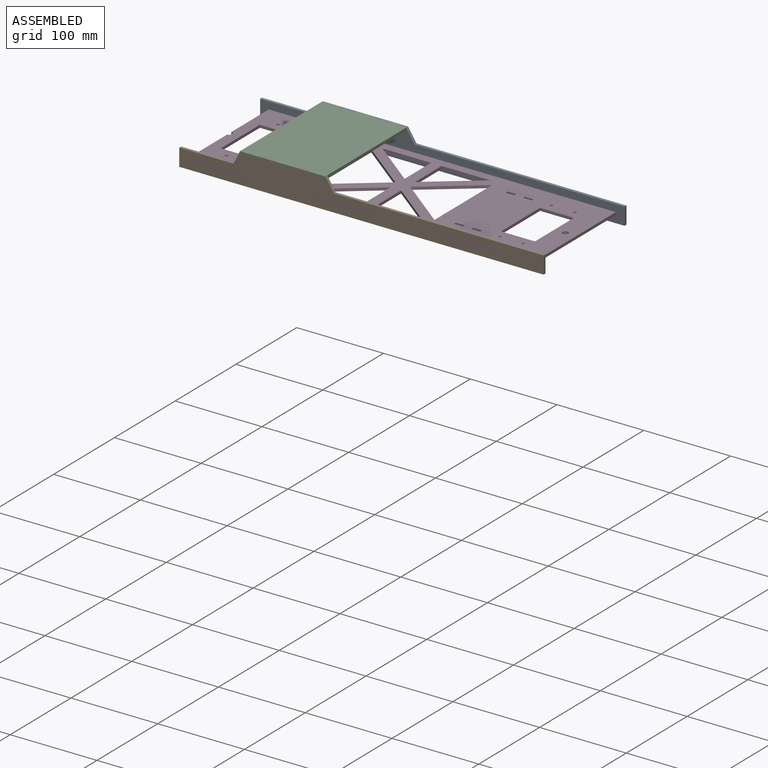
[diagram: assembled view]
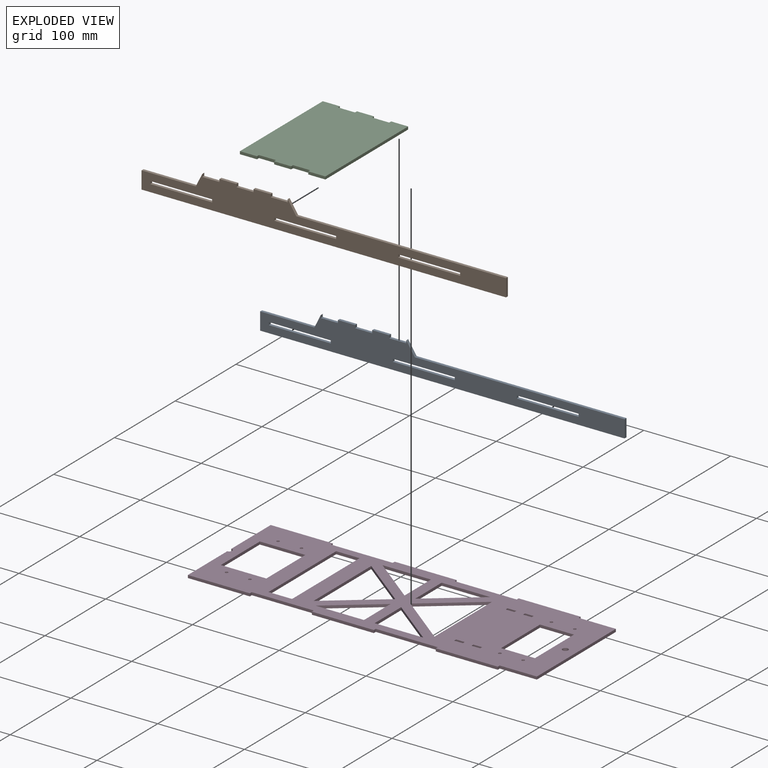
[diagram: exploded view]
GUIDED TOUR — MATED ASSEMBLY (Onshape document d849d121dfd26ec1d9eef098, AutoMate assembly d849d121dfd26ec1d9eef098_76168d8b41141996602a5c66_0535480cd738338197a98b83_default)

This assembly has 4 components, labeled P0..P3 below (a component is one placed occurrence of a part; the same part can appear more than once), held together by 3 mates. A mate is a constraint between two components; its type names the relative motion it leaves free:
  FASTENED — locks the two components together rigidly (no relative motion).
Axis/direction vectors are unit vectors and 'through' points are millimeter coordinates, both in the assembly's world frame.

MATES
  1. FASTENED "Fastened 2": P1 <-> P3, direction (0.000, 0.000, 1.000) through (-383.64, -128.85, 61.95) mm
  2. FASTENED "Fastened 1": P0 <-> P3, direction (0.000, 0.000, -1.000) through (-97.92, 7.50, 65.13) mm
  3. FASTENED "Fastened 3": P2 <-> P1, direction (0.000, 0.000, -1.000) through (-395.07, -128.85, 85.37) mm

ASSEMBLY ORDER
  1. P2 — the base component [order verified]
  2. P1 [order verified]
  3. P0 [order verified]
  4. P3 [order verified]
Order-tag legend:
  [order verified] — this step's position reverses a verified removal order: the component was checked to insert without passing through the ones already placed.

Of the 4 components, 4 carry the full construction recipe — the FeatureScript program that regenerates the part's solid from scratch; the rest are supplied as boundary geometry only.
Each toured component is shown spotlighted twice — in the assembled view, then in the exploded view, where a leader line traces a displaced component back to its assembled socket (saturated green if recipe-attached, orange if geometry-only; every other component desaturated gray) — followed by its recipe or geometry summary and the mates that hold it.
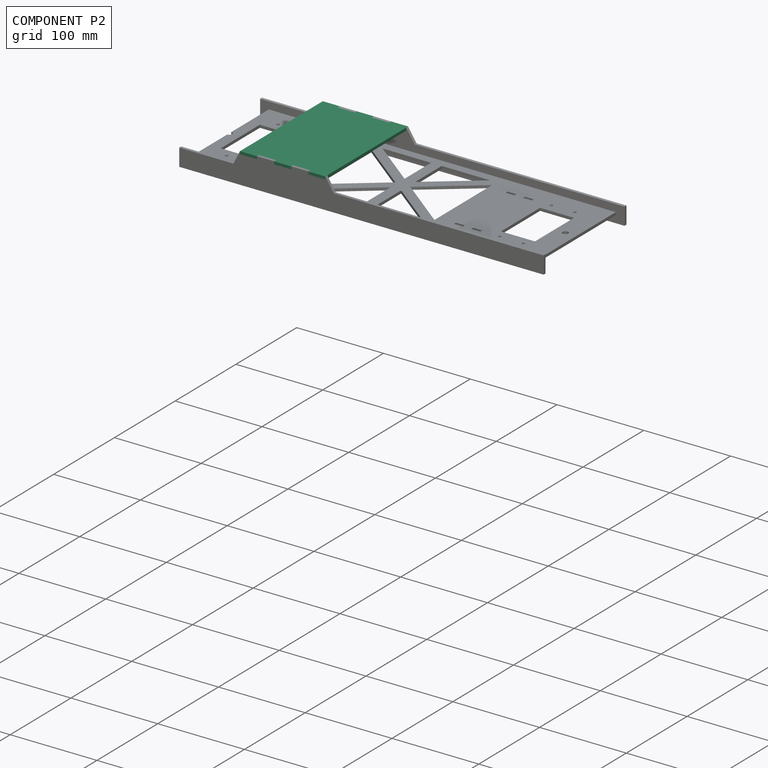
[diagram: component P2 — assembled]
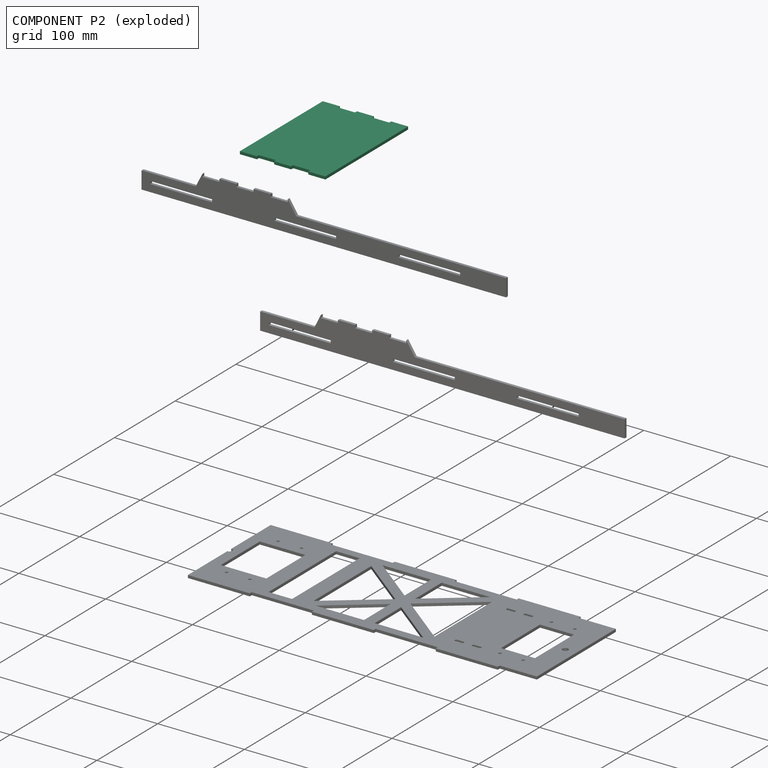
[diagram: component P2 — exploded]
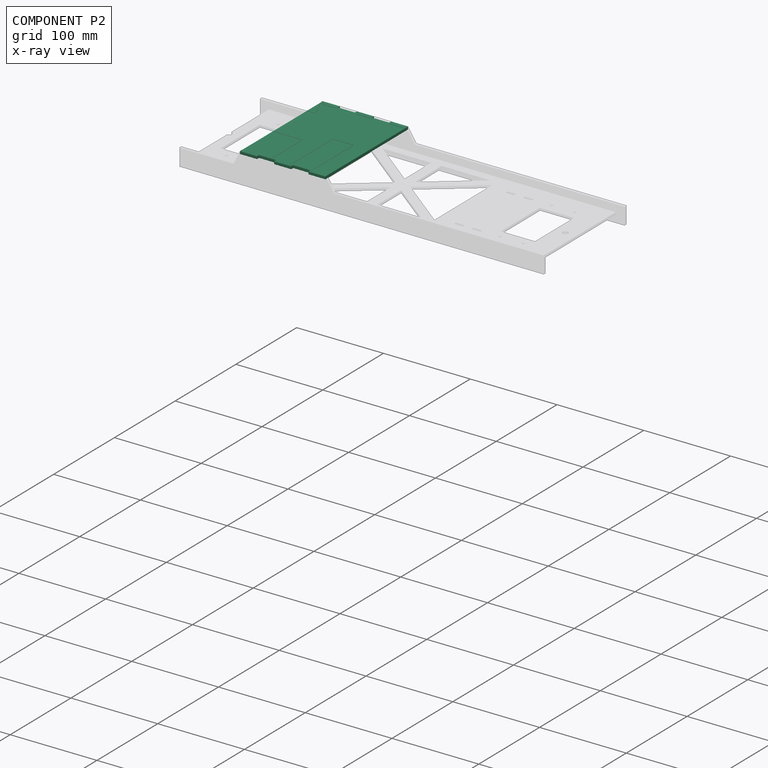
[diagram: component P2 — x-ray view]
COMPONENT P2 — recipe-attached (CADFS 00982041, mesh-verified: the recipe's output STEP matches this component's geometry to below the mesh-comparison resolution (tessellation chordal tolerance ~0.252 mm)).
Held by: FASTENED mate "Fastened 3" to P1.
Construction recipe (FeatureScript — the CAD program that rebuilds this solid; sketch coordinates are in the units given by the * unit suffixes, e.g. mm):

FeatureScript 1511;
import(path : "onshape/std/geometry.fs", version : "1511.0");
import(path : "onshape/std/common.fs", version : "1511.0");
const mm = millimeter;
const VERTEX = EntityType.VERTEX;
const EDGE = EntityType.EDGE;
const FACE = EntityType.FACE;
const BODY = EntityType.BODY;
function v(x, y){return vector(x, y);}
function OD(order){return orderDisambiguation(order);}
function OSD(set){return originalSetDisambiguation(set);}
function TD(topology){return topologyDisambiguation(topology);}
function TDD(query){return trueDependencyDisambiguation(query);}
function sQuery(a, b, c) {return sketchEntityQuery(a, b, c);}

annotation { "Feature Type Name" : "Feature", "Feature Type Description" : "" }
export const myFeature = defineFeature(function(context is Context, id is Id, definition is map)
    precondition{}
    {
        {
            var Q0;
            Q0=qCreatedBy(makeId("Top.planeOp"),FACE);
            var sketch = newSketch(context, id + "F0", { "sketchPlane" : qUnion([Q0])});
            skLineSegment(sketch, "E0.bottom", {"start": v(49.21, -65) * mm, "end": v(-49.21, -65) * mm, "construction": true});
            skLineSegment(sketch, "E0.top", {"start": v(49.21, 65) * mm, "end": v(-49.21, 65) * mm, "construction": true});
            skLineSegment(sketch, "E0.left", {"start": v(49.21, -65) * mm, "end": v(49.21, 65) * mm});
            skLineSegment(sketch, "E0.right", {"start": v(-49.21, -65) * mm, "end": v(-49.21, 65) * mm});
            skPoint(sketch, "E0.middle", {"position": v(0, 0) * mm});
            skLineSegment(sketch, "E1.top", {"start": v(-49.21, 68.17) * mm, "end": v(-29.53, 68.17) * mm});
            skLineSegment(sketch, "E1.left", {"start": v(-49.21, 65) * mm, "end": v(-49.21, 68.17) * mm});
            skLineSegment(sketch, "E1.right", {"start": v(-29.53, 65) * mm, "end": v(-29.53, 68.17) * mm});
            skLineSegment(sketch, "E2.top", {"start": v(49.21, 68.18) * mm, "end": v(29.53, 68.17) * mm});
            skLineSegment(sketch, "E2.left", {"start": v(49.21, 65) * mm, "end": v(49.21, 68.18) * mm});
            skLineSegment(sketch, "E2.right", {"start": v(29.53, 65) * mm, "end": v(29.53, 68.18) * mm});
            skLineSegment(sketch, "E3.top", {"start": v(-9.84, 68.18) * mm, "end": v(9.84, 68.18) * mm});
            skLineSegment(sketch, "E3.left", {"start": v(-9.84, 65) * mm, "end": v(-9.84, 68.18) * mm});
            skLineSegment(sketch, "E3.right", {"start": v(9.84, 65) * mm, "end": v(9.84, 68.18) * mm});
            skLineSegment(sketch, "E4", {"start": v(-29.53, 65) * mm, "end": v(-9.84, 65) * mm});
            skLineSegment(sketch, "E5", {"start": v(9.84, 65) * mm, "end": v(29.53, 65) * mm});
            skLineSegment(sketch, "E6.MirrorCS", {"start": v(-49.21, -65) * mm, "end": v(-49.21, -68.17) * mm});
            skLineSegment(sketch, "E7.MirrorCS", {"start": v(29.53, -65) * mm, "end": v(29.53, -68.18) * mm});
            skLineSegment(sketch, "E8.MirrorCS", {"start": v(-9.84, -65) * mm, "end": v(-9.84, -68.18) * mm});
            skLineSegment(sketch, "E9.MirrorCS", {"start": v(-29.53, -65) * mm, "end": v(-29.53, -68.17) * mm});
            skLineSegment(sketch, "E10.MirrorCS", {"start": v(9.84, -65) * mm, "end": v(9.84, -68.18) * mm});
            skLineSegment(sketch, "E11.MirrorCS", {"start": v(49.21, -65) * mm, "end": v(49.21, -68.18) * mm});
            skLineSegment(sketch, "E12.MirrorCS", {"start": v(9.84, -65) * mm, "end": v(29.53, -65) * mm});
            skLineSegment(sketch, "E13.MirrorCS", {"start": v(-29.53, -65) * mm, "end": v(-9.84, -65) * mm});
            skLineSegment(sketch, "E14.MirrorCS", {"start": v(49.21, -68.18) * mm, "end": v(29.53, -68.17) * mm});
            skLineSegment(sketch, "E15.MirrorCS", {"start": v(-49.21, -68.17) * mm, "end": v(-29.53, -68.17) * mm});
            skLineSegment(sketch, "E16.MirrorCS", {"start": v(-9.84, -68.18) * mm, "end": v(9.84, -68.18) * mm});
            skSolve(sketch);
        }
        {
            var Q0;
            Q0 = qSketchRegion(id + "F0", true);
            extrude(context, id + "F1", {"entities" : qUnion([Q0]), "depth" : 3.17 * mm, "offsetDistance" : 25 * mm});
        }
    });
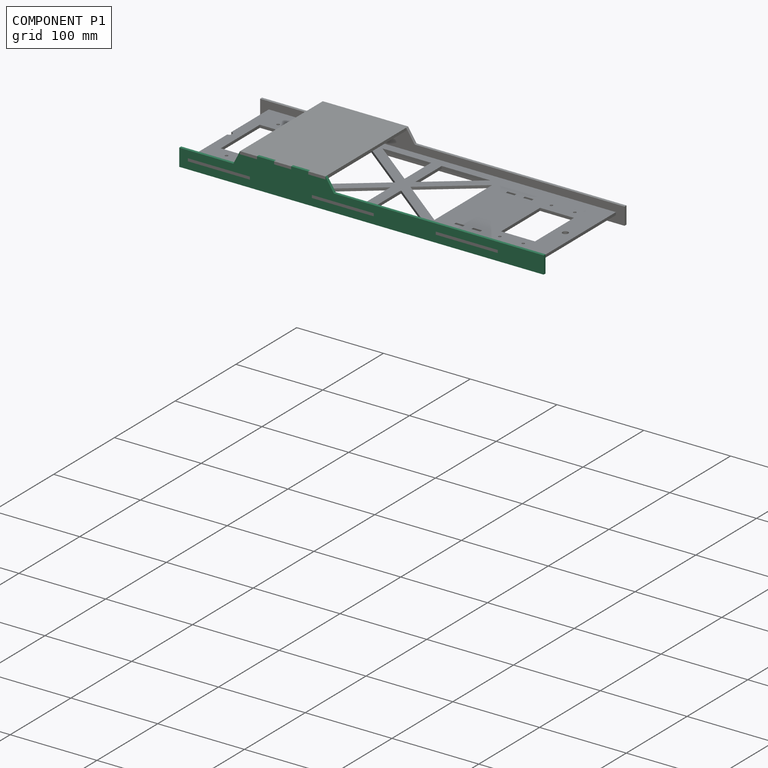
[diagram: component P1 — assembled]
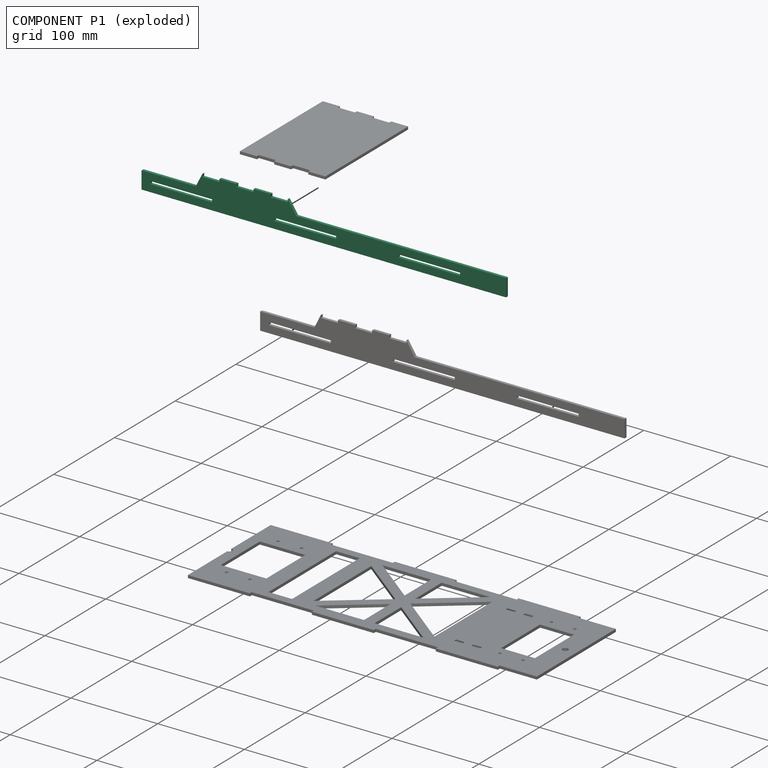
[diagram: component P1 — exploded]
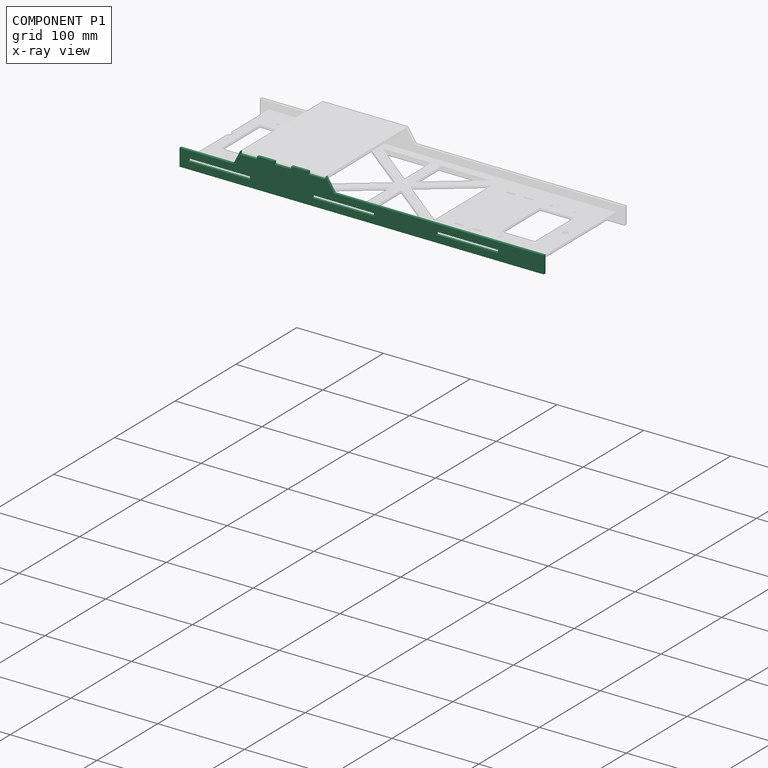
[diagram: component P1 — x-ray view]
COMPONENT P1 — same part as P0 (CADFS 00982040); its construction recipe is shown at P0.
Held by: FASTENED mate "Fastened 2" to P3; FASTENED mate "Fastened 3" to P2.
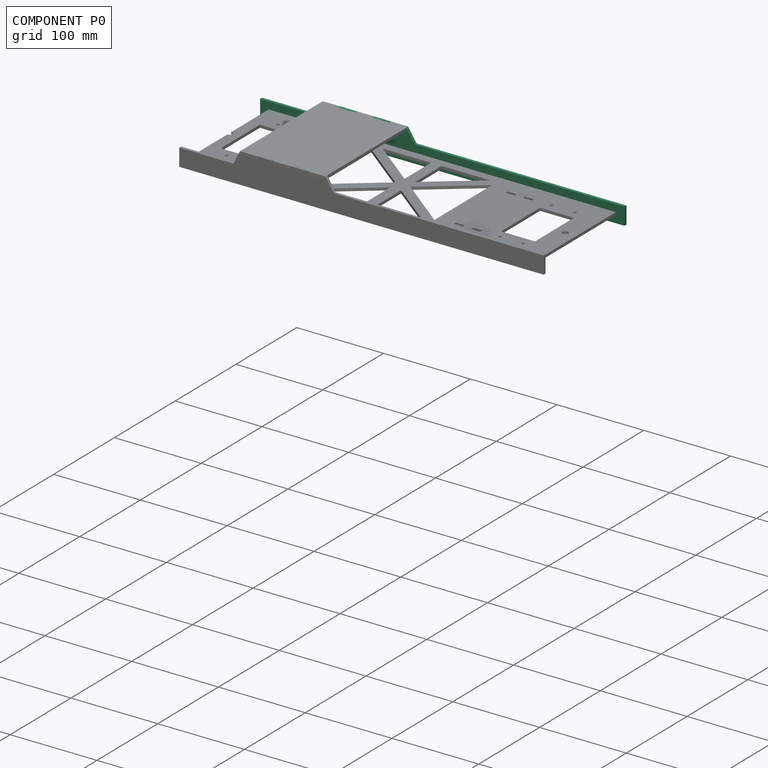
[diagram: component P0 — assembled]
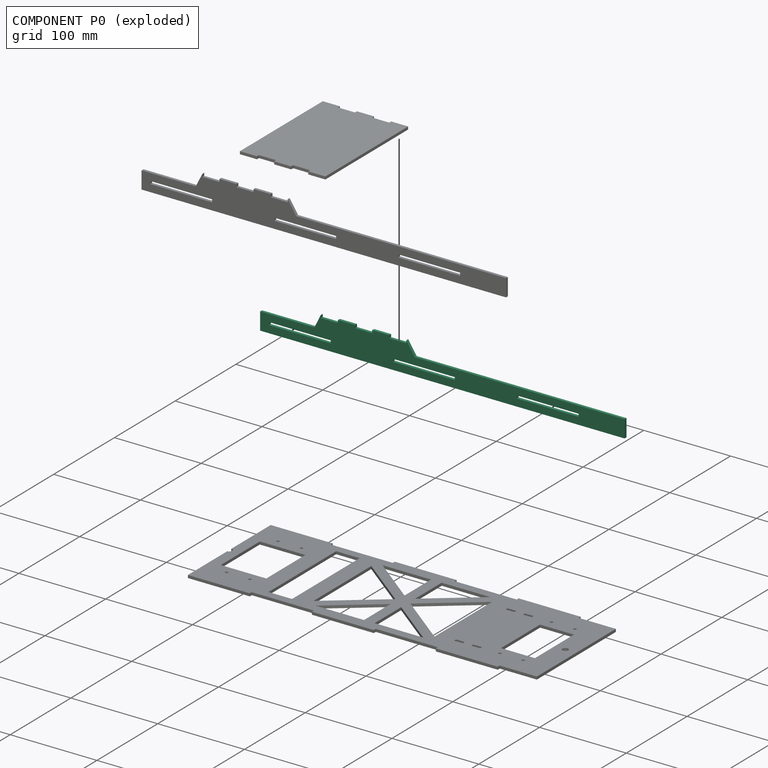
[diagram: component P0 — exploded]
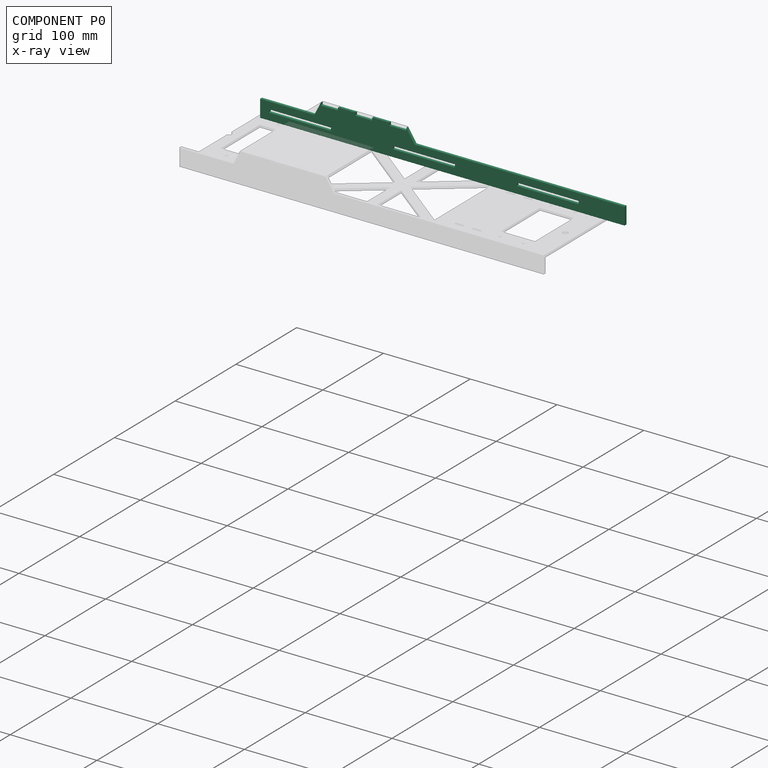
[diagram: component P0 — x-ray view]
COMPONENT P0 — recipe-attached (CADFS 00982040, mesh-verified: the recipe's output STEP matches this component's geometry to below the mesh-comparison resolution (tessellation chordal tolerance ~0.632 mm)).
Held by: FASTENED mate "Fastened 1" to P3.
Construction recipe (FeatureScript — the CAD program that rebuilds this solid; sketch coordinates are in the units given by the * unit suffixes, e.g. mm):

FeatureScript 1511;
import(path : "onshape/std/geometry.fs", version : "1511.0");
import(path : "onshape/std/common.fs", version : "1511.0");
const mm = millimeter;
const VERTEX = EntityType.VERTEX;
const EDGE = EntityType.EDGE;
const FACE = EntityType.FACE;
const BODY = EntityType.BODY;
function v(x, y){return vector(x, y);}
function OD(order){return orderDisambiguation(order);}
function OSD(set){return originalSetDisambiguation(set);}
function TD(topology){return topologyDisambiguation(topology);}
function TDD(query){return trueDependencyDisambiguation(query);}
function sQuery(a, b, c) {return sketchEntityQuery(a, b, c);}

annotation { "Feature Type Name" : "Feature", "Feature Type Description" : "" }
export const myFeature = defineFeature(function(context is Context, id is Id, definition is map)
    precondition{}
    {
        {
            var Q0;
            Q0=qCreatedBy(makeId("Front.planeOp"),FACE);
            var sketch = newSketch(context, id + "F0", { "sketchPlane" : qUnion([Q0])});
            skLineSegment(sketch, "E0.right", {"start": v(-260, -10) * mm, "end": v(-260, 10) * mm});
            skPoint(sketch, "E0.middle", {"position": v(0, 0) * mm});
            skLineSegment(sketch, "E1.bottom", {"start": v(35.71, -1.59) * mm, "end": v(-35.71, -1.59) * mm, "construction": true});
            skLineSegment(sketch, "E1.top", {"start": v(35.71, 1.59) * mm, "end": v(-35.71, 1.59) * mm, "construction": true});
            skLineSegment(sketch, "E1.left", {"start": v(35.71, -1.59) * mm, "end": v(35.71, 1.59) * mm, "construction": true});
            skLineSegment(sketch, "E1.right", {"start": v(-35.71, -1.59) * mm, "end": v(-35.71, 1.59) * mm});
            skLineSegment(sketch, "E2.1.0.0", {"start": v(107.14, 1.59) * mm, "end": v(35.71, 1.59) * mm});
            skLineSegment(sketch, "E2.1.0.1", {"start": v(107.14, -1.59) * mm, "end": v(35.71, -1.59) * mm});
            skLineSegment(sketch, "E2.1.0.2", {"start": v(107.14, -1.59) * mm, "end": v(107.14, 1.59) * mm});
            skLineSegment(sketch, "E2.1.0.3", {"start": v(35.71, -1.59) * mm, "end": v(35.71, 1.59) * mm});
            skLineSegment(sketch, "E2.2.0.0", {"start": v(178.57, 1.59) * mm, "end": v(107.14, 1.59) * mm, "construction": true});
            skLineSegment(sketch, "E2.2.0.1", {"start": v(178.57, -1.59) * mm, "end": v(107.14, -1.59) * mm, "construction": true});
            skLineSegment(sketch, "E2.2.0.3", {"start": v(107.14, -1.59) * mm, "end": v(107.14, 1.59) * mm, "construction": true});
            skLineSegment(sketch, "E2.direction1", {"start": v(-35.71, -1.59) * mm, "end": v(35.71, -1.59) * mm, "construction": true});
            skLineSegment(sketch, "E3.MirrorCS", {"start": v(-250, -1.59) * mm, "end": v(-250, 1.59) * mm});
            skLineSegment(sketch, "E4.MirrorCS", {"start": v(-178.57, -1.59) * mm, "end": v(-178.57, 1.59) * mm});
            skLineSegment(sketch, "E5.MirrorCS", {"start": v(-250, -1.59) * mm, "end": v(-178.57, -1.59) * mm});
            skLineSegment(sketch, "E6.MirrorCS", {"start": v(-250, 1.59) * mm, "end": v(-178.57, 1.59) * mm});
            skLineSegment(sketch, "E7.MirrorCS", {"start": v(-107.14, -1.59) * mm, "end": v(-107.14, 1.59) * mm});
            skLineSegment(sketch, "E8.MirrorCS", {"start": v(-35.71, -1.59) * mm, "end": v(-35.71, 1.59) * mm, "construction": true});
            skLineSegment(sketch, "E9.MirrorCS", {"start": v(-107.14, 1.59) * mm, "end": v(-35.71, 1.59) * mm});
            skLineSegment(sketch, "E10.MirrorCS", {"start": v(-107.14, -1.59) * mm, "end": v(-35.71, -1.59) * mm});
            skLineSegment(sketch, "E11.bottom", {"start": v(-250, -5.81) * mm, "end": v(150, -5.81) * mm, "construction": true});
            skLineSegment(sketch, "E12", {"start": v(-35.71, 1.59) * mm, "end": v(-35.71, 33.6) * mm, "construction": true});
            skLineSegment(sketch, "E13", {"start": v(-190, 25) * mm, "end": v(-190, 10) * mm});
            skLineSegment(sketch, "E14", {"start": v(-91.58, 25) * mm, "end": v(-91.58, 10) * mm});
            skLineSegment(sketch, "E15", {"start": v(-170.32, 25) * mm, "end": v(-170.32, 21.83) * mm});
            skLineSegment(sketch, "E16", {"start": v(-150.63, 21.83) * mm, "end": v(-150.63, 25) * mm});
            skLineSegment(sketch, "E17", {"start": v(-130.95, 25) * mm, "end": v(-130.95, 21.83) * mm});
            skLineSegment(sketch, "E18", {"start": v(-111.26, 21.83) * mm, "end": v(-111.26, 25) * mm});
            skLineSegment(sketch, "E19", {"start": v(-190, 25) * mm, "end": v(-197.49, 10) * mm});
            skLineSegment(sketch, "E20", {"start": v(-150.63, 23.41) * mm, "end": v(-130.95, 23.41) * mm, "construction": true});
            skLineSegment(sketch, "E21.MirrorCS", {"start": v(-130.95, 21.83) * mm, "end": v(-130.95, 25) * mm});
            skLineSegment(sketch, "E22.MirrorCS", {"start": v(-150.63, 25) * mm, "end": v(-150.63, 21.83) * mm});
            skLineSegment(sketch, "E23.MirrorCS", {"start": v(-111.26, 21.83) * mm, "end": v(-91.58, 21.82) * mm});
            skLineSegment(sketch, "E24.MirrorCS", {"start": v(-190, 21.82) * mm, "end": v(-170.32, 21.82) * mm});
            skLineSegment(sketch, "E25.MirrorCS", {"start": v(-150.63, 21.83) * mm, "end": v(-130.95, 21.83) * mm});
            skLineSegment(sketch, "E26.MirrorCS", {"start": v(-170.32, 25) * mm, "end": v(-150.63, 25) * mm});
            skLineSegment(sketch, "E27.MirrorCS", {"start": v(-111.26, 25) * mm, "end": v(-111.26, 21.83) * mm});
            skLineSegment(sketch, "E28.MirrorCS", {"start": v(-130.95, 25) * mm, "end": v(-111.26, 25) * mm});
            skLineSegment(sketch, "E29.MirrorCS", {"start": v(-170.32, 21.82) * mm, "end": v(-170.32, 25) * mm});
            skLineSegment(sketch, "E30", {"start": v(-190, 25) * mm, "end": v(-91.58, 25) * mm, "construction": true});
            skLineSegment(sketch, "E31", {"start": v(-91.58, 25) * mm, "end": v(-81.9, 10) * mm});
            skLineSegment(sketch, "E32", {"start": v(150, -5.81) * mm, "end": v(150, 10) * mm, "construction": true});
            skLineSegment(sketch, "E33", {"start": v(160, 10) * mm, "end": v(160, -10) * mm});
            skLineSegment(sketch, "E34", {"start": v(-260, -10) * mm, "end": v(160, -10) * mm});
            skLineSegment(sketch, "E35", {"start": v(-260, 10) * mm, "end": v(160, 10) * mm});
            skSolve(sketch);
        }
        {
            var Q0;
            Q0 = qSketchRegion(id + "F0", true);
            extrude(context, id + "F1", {"entities" : qUnion([Q0]), "depth" : 3.17 * mm, "offsetDistance" : 25 * mm});
        }
    });
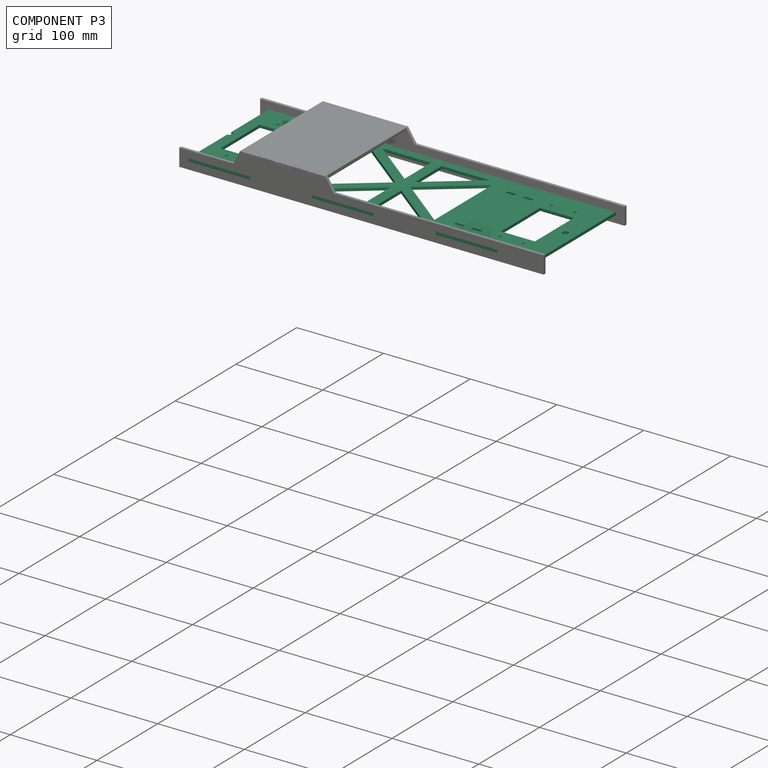
[diagram: component P3 — assembled]
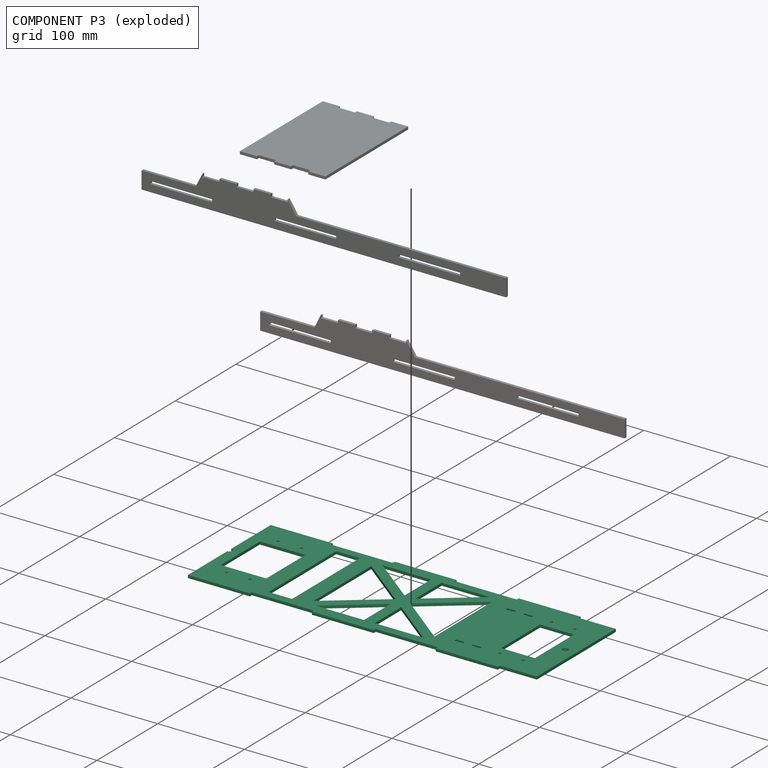
[diagram: component P3 — exploded]
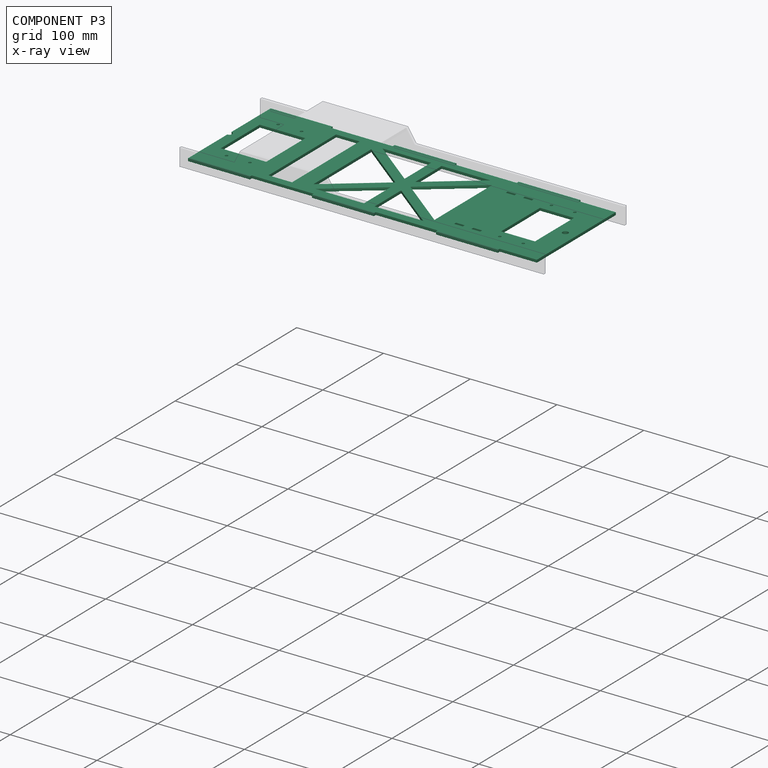
[diagram: component P3 — x-ray view]
COMPONENT P3 — recipe-attached (CADFS 00982034, mesh-verified: the recipe's output STEP matches this component's geometry to below the mesh-comparison resolution (tessellation chordal tolerance ~0.634 mm)).
Held by: FASTENED mate "Fastened 2" to P1; FASTENED mate "Fastened 1" to P0.
Construction recipe (FeatureScript — the CAD program that rebuilds this solid; sketch coordinates are in the units given by the * unit suffixes, e.g. mm):

FeatureScript 1511;
import(path : "onshape/std/geometry.fs", version : "1511.0");
import(path : "onshape/std/common.fs", version : "1511.0");
const mm = millimeter;
const VERTEX = EntityType.VERTEX;
const EDGE = EntityType.EDGE;
const FACE = EntityType.FACE;
const BODY = EntityType.BODY;
function v(x, y){return vector(x, y);}
function OD(order){return orderDisambiguation(order);}
function OSD(set){return originalSetDisambiguation(set);}
function TD(topology){return topologyDisambiguation(topology);}
function TDD(query){return trueDependencyDisambiguation(query);}
function sQuery(a, b, c) {return sketchEntityQuery(a, b, c);}

annotation { "Feature Type Name" : "Feature", "Feature Type Description" : "" }
export const myFeature = defineFeature(function(context is Context, id is Id, definition is map)
    precondition{}
    {
        {
            var Q0;
            Q0=qCreatedBy(makeId("Front.planeOp"),FACE);
            var sketch = newSketch(context, id + "F0", { "sketchPlane" : qUnion([Q0])});
            skLineSegment(sketch, "E0.bottom", {"start": v(122.16, -50.2) * mm, "end": v(-277.84, -50.2) * mm, "construction": true});
            skLineSegment(sketch, "E0.top", {"start": v(122.16, 79.8) * mm, "end": v(-277.84, 79.8) * mm, "construction": true});
            skLineSegment(sketch, "E0.left", {"start": v(122.16, -50.2) * mm, "end": v(122.16, 79.8) * mm});
            skLineSegment(sketch, "E0.right", {"start": v(-277.84, -50.2) * mm, "end": v(-277.84, 79.8) * mm});
            skCircle(sketch, "E1", {"center": v(-237.84, 57.25) * mm, "radius": 4 * mm, "construction": true});
            skLineSegment(sketch, "E2", {"start": v(-237.84, 57.25) * mm, "end": v(-233.84, 57.25) * mm, "construction": true});
            skLineSegment(sketch, "E3", {"start": v(-237.84, 57.25) * mm, "end": v(-237.84, 61.25) * mm, "construction": true});
            skCircle(sketch, "E4", {"center": v(-224.37, 57.25) * mm, "radius": 1.64 * mm});
            skCircle(sketch, "E5.MirrorC", {"center": v(-251.32, 57.25) * mm, "radius": 1.64 * mm});
            skCircle(sketch, "E6", {"center": v(-237.84, -27.65) * mm, "radius": 4 * mm, "construction": true});
            skLineSegment(sketch, "E7", {"start": v(-237.84, -27.65) * mm, "end": v(-233.84, -27.65) * mm, "construction": true});
            skLineSegment(sketch, "E8", {"start": v(-237.84, -27.65) * mm, "end": v(-237.84, -23.65) * mm, "construction": true});
            skCircle(sketch, "E9", {"center": v(-224.37, -27.65) * mm, "radius": 1.64 * mm});
            skCircle(sketch, "E10.MirrorC", {"center": v(-251.32, -27.65) * mm, "radius": 1.64 * mm});
            skCircle(sketch, "E11", {"center": v(77.16, -27.65) * mm, "radius": 4 * mm, "construction": true});
            skLineSegment(sketch, "E12", {"start": v(77.16, -27.65) * mm, "end": v(81.16, -27.65) * mm, "construction": true});
            skLineSegment(sketch, "E13", {"start": v(77.16, -27.65) * mm, "end": v(77.16, -23.65) * mm, "construction": true});
            skCircle(sketch, "E14", {"center": v(90.63, -27.65) * mm, "radius": 1.64 * mm});
            skCircle(sketch, "E15.MirrorC", {"center": v(63.68, -27.65) * mm, "radius": 1.64 * mm});
            skCircle(sketch, "E16", {"center": v(77.16, 57.25) * mm, "radius": 4 * mm, "construction": true});
            skLineSegment(sketch, "E17", {"start": v(77.16, 57.25) * mm, "end": v(81.16, 57.25) * mm, "construction": true});
            skLineSegment(sketch, "E18", {"start": v(77.16, 57.25) * mm, "end": v(77.16, 61.25) * mm, "construction": true});
            skCircle(sketch, "E19", {"center": v(90.63, 57.25) * mm, "radius": 1.64 * mm});
            skCircle(sketch, "E20.MirrorC", {"center": v(63.68, 57.25) * mm, "radius": 1.64 * mm});
            skPoint(sketch, "E21.middle.positionSnap0", {"position": v(-237.84, -25.65) * mm});
            skPoint(sketch, "E21.centerSnap0", {"position": v(-237.84, -25.65) * mm});
            skCircle(sketch, "E22", {"center": v(109.46, 14.8) * mm, "radius": 3.3 * mm});
            skLineSegment(sketch, "E23", {"start": v(-77.84, 79.8) * mm, "end": v(-77.84, -50.2) * mm, "construction": true});
            skLineSegment(sketch, "E24", {"start": v(-77.84, 14.8) * mm, "end": v(-277.84, 14.8) * mm, "construction": true});
            skLineSegment(sketch, "E25.right", {"start": v(-265.14, -17.3) * mm, "end": v(-265.14, 46.9) * mm});
            skPoint(sketch, "E25.middle", {"position": v(-196.56, 14.8) * mm});
            skLineSegment(sketch, "E26", {"start": v(-77.84, 14.8) * mm, "end": v(122.16, 14.8) * mm, "construction": true});
            skLineSegment(sketch, "E27.right", {"start": v(97.09, 47.18) * mm, "end": v(97.09, -17.02) * mm});
            skLineSegment(sketch, "E28", {"start": v(-166.57, 70.43) * mm, "end": v(-166.57, -40.83) * mm});
            skLineSegment(sketch, "E29.right", {"start": v(-212.72, 46.9) * mm, "end": v(-212.72, -17.3) * mm});
            skLineSegment(sketch, "E30", {"start": v(-265.14, 46.9) * mm, "end": v(-212.72, 46.9) * mm});
            skLineSegment(sketch, "E31", {"start": v(-265.14, -17.3) * mm, "end": v(-212.72, -17.3) * mm});
            skLineSegment(sketch, "E32.right", {"start": v(58.02, 47.18) * mm, "end": v(58.02, -17.02) * mm});
            skLineSegment(sketch, "E33", {"start": v(58.02, 47.18) * mm, "end": v(97.09, 47.18) * mm});
            skLineSegment(sketch, "E34", {"start": v(58.02, -17.02) * mm, "end": v(97.09, -17.02) * mm});
            skLineSegment(sketch, "E35.bottom", {"start": v(-8.17, -40.35) * mm, "end": v(-147.52, -40.35) * mm});
            skLineSegment(sketch, "E35.top", {"start": v(-8.17, 69.95) * mm, "end": v(-147.52, 69.95) * mm});
            skLineSegment(sketch, "E35.left", {"start": v(-8.17, -40.35) * mm, "end": v(-8.17, 69.95) * mm});
            skLineSegment(sketch, "E35.right", {"start": v(-147.52, -40.35) * mm, "end": v(-147.52, 69.95) * mm});
            skPoint(sketch, "E35.middle", {"position": v(-77.84, 14.8) * mm});
            skLineSegment(sketch, "E36", {"start": v(-147.52, 62.33) * mm, "end": v(-15.79, -40.35) * mm});
            skLineSegment(sketch, "E37", {"start": v(-139.9, 69.95) * mm, "end": v(-8.17, -32.73) * mm});
            skLineSegment(sketch, "E38.MirrorCS", {"start": v(-15.79, 69.95) * mm, "end": v(-147.52, -32.73) * mm});
            skLineSegment(sketch, "E39.MirrorCS", {"start": v(-8.17, 62.33) * mm, "end": v(-139.9, -40.35) * mm});
            skLineSegment(sketch, "E40.bottom", {"start": v(-71.7, -40.35) * mm, "end": v(-83.99, -40.35) * mm});
            skLineSegment(sketch, "E40.top", {"start": v(-71.7, 69.95) * mm, "end": v(-83.99, 69.95) * mm});
            skLineSegment(sketch, "E40.left", {"start": v(-71.7, -40.35) * mm, "end": v(-71.7, 69.95) * mm});
            skLineSegment(sketch, "E40.right", {"start": v(-83.99, -40.35) * mm, "end": v(-83.99, 69.95) * mm});
            skLineSegment(sketch, "E41", {"start": v(-193.67, 70.43) * mm, "end": v(-193.67, -40.83) * mm});
            skLineSegment(sketch, "E42", {"start": v(-193.67, 70.43) * mm, "end": v(-166.57, 70.43) * mm});
            skLineSegment(sketch, "E43", {"start": v(-193.67, -40.83) * mm, "end": v(-166.57, -40.83) * mm});
            skLineSegment(sketch, "E44.top", {"start": v(-277.84, -53.38) * mm, "end": v(-206.41, -53.38) * mm});
            skLineSegment(sketch, "E44.left", {"start": v(-277.84, -50.2) * mm, "end": v(-277.84, -53.38) * mm});
            skLineSegment(sketch, "E44.right", {"start": v(-206.41, -50.2) * mm, "end": v(-206.41, -53.38) * mm});
            skLineSegment(sketch, "E45.bottom", {"start": v(-206.41, -50.2) * mm, "end": v(-134.99, -50.2) * mm});
            skLineSegment(sketch, "E46.1.0.0", {"start": v(-134.99, -53.38) * mm, "end": v(-63.56, -53.38) * mm});
            skLineSegment(sketch, "E46.1.0.1", {"start": v(-63.56, -50.2) * mm, "end": v(7.87, -50.2) * mm});
            skLineSegment(sketch, "E46.1.0.2", {"start": v(-134.99, -50.2) * mm, "end": v(-134.99, -53.38) * mm});
            skLineSegment(sketch, "E46.1.0.3", {"start": v(-63.56, -50.2) * mm, "end": v(-63.56, -53.38) * mm});
            skLineSegment(sketch, "E46.1.0.4", {"start": v(-63.56, -50.2) * mm, "end": v(-63.56, -53.38) * mm});
            skLineSegment(sketch, "E46.2.0.0", {"start": v(7.87, -53.38) * mm, "end": v(79.3, -53.38) * mm});
            skLineSegment(sketch, "E46.2.0.2", {"start": v(7.87, -50.2) * mm, "end": v(7.87, -53.38) * mm});
            skLineSegment(sketch, "E46.direction1", {"start": v(-277.84, -53.38) * mm, "end": v(-134.99, -53.38) * mm, "construction": true});
            skLineSegment(sketch, "E47.MirrorCS", {"start": v(-63.56, 79.8) * mm, "end": v(-63.56, 82.97) * mm});
            skLineSegment(sketch, "E48.MirrorCS", {"start": v(-206.41, 79.8) * mm, "end": v(-206.41, 82.97) * mm});
            skLineSegment(sketch, "E49.MirrorCS", {"start": v(-134.99, 79.8) * mm, "end": v(-134.99, 82.97) * mm});
            skLineSegment(sketch, "E50.MirrorCS", {"start": v(-277.84, 79.8) * mm, "end": v(-277.84, 82.97) * mm});
            skLineSegment(sketch, "E51.MirrorCS", {"start": v(7.87, 79.8) * mm, "end": v(7.87, 82.97) * mm});
            skLineSegment(sketch, "E52.MirrorCS", {"start": v(-63.56, 79.8) * mm, "end": v(7.87, 79.8) * mm});
            skLineSegment(sketch, "E53.MirrorCS", {"start": v(-277.84, 82.97) * mm, "end": v(-206.41, 82.97) * mm});
            skLineSegment(sketch, "E54.MirrorCS", {"start": v(-206.41, 79.8) * mm, "end": v(-134.99, 79.8) * mm});
            skLineSegment(sketch, "E55.MirrorCS", {"start": v(7.87, 82.97) * mm, "end": v(79.3, 82.97) * mm});
            skLineSegment(sketch, "E56.MirrorCS", {"start": v(-277.84, 82.97) * mm, "end": v(-134.99, 82.97) * mm, "construction": true});
            skLineSegment(sketch, "E57.MirrorCS", {"start": v(-134.99, 82.97) * mm, "end": v(-63.56, 82.97) * mm});
            skLineSegment(sketch, "E58.MirrorCS", {"start": v(42.16, -26.06) * mm, "end": v(42.16, -29.24) * mm});
            skLineSegment(sketch, "E59.MirrorCS", {"start": v(12.16, -26.06) * mm, "end": v(12.16, -29.24) * mm});
            skCircle(sketch, "E60.MirrorC", {"center": v(27.16, -27.65) * mm, "radius": 2.35 * mm, "construction": true});
            skLineSegment(sketch, "E61.bottom", {"start": v(12.16, -26.06) * mm, "end": v(22.16, -26.06) * mm});
            skLineSegment(sketch, "E61.top", {"start": v(12.16, -29.24) * mm, "end": v(22.16, -29.24) * mm});
            skLineSegment(sketch, "E61.right", {"start": v(22.16, -26.06) * mm, "end": v(22.16, -29.24) * mm});
            skLineSegment(sketch, "E62.bottom", {"start": v(42.16, -26.06) * mm, "end": v(32.16, -26.06) * mm});
            skLineSegment(sketch, "E62.top", {"start": v(42.16, -29.24) * mm, "end": v(32.16, -29.24) * mm});
            skLineSegment(sketch, "E62.right", {"start": v(32.16, -26.06) * mm, "end": v(32.16, -29.24) * mm});
            skLineSegment(sketch, "E63.MirrorCS", {"start": v(12.16, 55.66) * mm, "end": v(12.16, 58.84) * mm});
            skLineSegment(sketch, "E64.MirrorCS", {"start": v(42.16, 55.66) * mm, "end": v(42.16, 58.84) * mm});
            skLineSegment(sketch, "E65.MirrorCS", {"start": v(12.16, 58.84) * mm, "end": v(22.16, 58.84) * mm});
            skLineSegment(sketch, "E66.MirrorCS", {"start": v(42.16, 55.66) * mm, "end": v(32.16, 55.66) * mm});
            skLineSegment(sketch, "E67.MirrorCS", {"start": v(42.16, 58.84) * mm, "end": v(32.16, 58.84) * mm});
            skCircle(sketch, "E68.MirrorC", {"center": v(27.16, 57.25) * mm, "radius": 2.35 * mm, "construction": true});
            skLineSegment(sketch, "E69.MirrorCS", {"start": v(12.16, 55.66) * mm, "end": v(22.16, 55.66) * mm});
            skLineSegment(sketch, "E70.MirrorCS", {"start": v(32.16, 55.66) * mm, "end": v(32.16, 58.84) * mm});
            skLineSegment(sketch, "E71.MirrorCS", {"start": v(22.16, 55.66) * mm, "end": v(22.16, 58.84) * mm});
            skLineSegment(sketch, "E72", {"start": v(79.3, 82.97) * mm, "end": v(79.3, 79.8) * mm});
            skLineSegment(sketch, "E73", {"start": v(79.3, 79.8) * mm, "end": v(122.16, 79.8) * mm});
            skLineSegment(sketch, "E74", {"start": v(79.3, -53.38) * mm, "end": v(79.3, -50.2) * mm});
            skLineSegment(sketch, "E75", {"start": v(79.3, -50.2) * mm, "end": v(122.16, -50.2) * mm});
            skCircle(sketch, "E76", {"center": v(-277.84, 14.8) * mm, "radius": 3.3 * mm});
            skSolve(sketch);
        }
        {
            var Q0;
            Q0=makeQuery(id+"F0.imprint","IMPRINT",FACE,{"disambiguationData":[TD([[makeQuery(id+"F0.imprint","IMPRINT",EDGE,{"derivedFrom":sQuery(id+"F0.wireOp",EDGE,"E0.left")}),1.0]])]});
            var Q1;
            {var subQ1=sQuery(id+"F0.wireOp",EDGE,"E35.top");var subQ6=sQuery(id+"F0.wireOp",EDGE,"E35.right");var subQ10=makeQuery(id+"F0.imprint","INTERSECT",VERTEX,{"derivedFrom":[subQ1,subQ6]});Q1=makeQuery(id+"F0.imprint","IMPRINT",FACE,{"disambiguationData":[TD([[makeQuery(id+"F0.imprint","IMPRINT",EDGE,{"disambiguationData":[TD([[subQ10,1.0]])],"derivedFrom":subQ1}),1.0]])]});}
            var Q2;
            {var subQ6=sQuery(id+"F0.wireOp",EDGE,"E35.top");var subQ9=sQuery(id+"F0.wireOp",EDGE,"E35.left");var subQ10=makeQuery(id+"F0.imprint","INTERSECT",VERTEX,{"derivedFrom":[subQ6,subQ9]});Q2=makeQuery(id+"F0.imprint","IMPRINT",FACE,{"disambiguationData":[TD([[makeQuery(id+"F0.imprint","IMPRINT",EDGE,{"disambiguationData":[TD([[subQ10,-1.0]])],"derivedFrom":subQ6}),1.0]])]});}
            var Q3;
            {var subQ0=sQuery(id+"F0.wireOp",EDGE,"E36");var subQ1=sQuery(id+"F0.wireOp",EDGE,"E35.bottom");var subQ2=makeQuery(id+"F0.imprint","INTERSECT",VERTEX,{"derivedFrom":[subQ1,subQ0]});Q3=makeQuery(id+"F0.imprint","IMPRINT",FACE,{"disambiguationData":[TD([[makeQuery(id+"F0.imprint","IMPRINT",EDGE,{"disambiguationData":[TD([[subQ2,1.0]])],"derivedFrom":subQ1}),-1.0]])]});}
            var Q4;
            {var subQ1=sQuery(id+"F0.wireOp",EDGE,"E35.right");var subQ7=sQuery(id+"F0.wireOp",EDGE,"E35.bottom");var subQ8=makeQuery(id+"F0.imprint","INTERSECT",VERTEX,{"derivedFrom":[subQ7,subQ1]});Q4=makeQuery(id+"F0.imprint","IMPRINT",FACE,{"disambiguationData":[TD([[makeQuery(id+"F0.imprint","IMPRINT",EDGE,{"disambiguationData":[TD([[subQ8,1.0]])],"derivedFrom":subQ7}),-1.0]])]});}
            var Q5;
            {var subQ1=sQuery(id+"F0.wireOp",EDGE,"E35.bottom");var subQ7=sQuery(id+"F0.wireOp",EDGE,"E40.right");var subQ9=makeQuery(id+"F0.imprint","INTERSECT",VERTEX,{"derivedFrom":[subQ1,subQ7]});Q5=makeQuery(id+"F0.imprint","IMPRINT",FACE,{"disambiguationData":[TD([[makeQuery(id+"F0.imprint","IMPRINT",EDGE,{"disambiguationData":[TD([[subQ9,1.0]])],"derivedFrom":subQ1}),-1.0]])]});}
            var Q6;
            {var subQ0=sQuery(id+"F0.wireOp",EDGE,"E40.left");var subQ1=sQuery(id+"F0.wireOp",EDGE,"E36");var subQ2=makeQuery(id+"F0.imprint","INTERSECT",VERTEX,{"derivedFrom":[subQ1,subQ0]});Q6=makeQuery(id+"F0.imprint","IMPRINT",FACE,{"disambiguationData":[TD([[makeQuery(id+"F0.imprint","IMPRINT",EDGE,{"disambiguationData":[TD([[subQ2,1.0]])],"derivedFrom":subQ1}),1.0]])]});}
            var Q7;
            {var subQ0=sQuery(id+"F0.wireOp",EDGE,"E40.right");var subQ1=sQuery(id+"F0.wireOp",EDGE,"E36");var subQ2=makeQuery(id+"F0.imprint","INTERSECT",VERTEX,{"derivedFrom":[subQ1,subQ0]});Q7=makeQuery(id+"F0.imprint","IMPRINT",FACE,{"disambiguationData":[TD([[makeQuery(id+"F0.imprint","IMPRINT",EDGE,{"disambiguationData":[TD([[subQ2,-1.0]])],"derivedFrom":subQ1}),-1.0]])]});}
            var Q8;
            {var subQ0=sQuery(id+"F0.wireOp",EDGE,"E40.right");var subQ1=sQuery(id+"F0.wireOp",EDGE,"E36");var subQ2=makeQuery(id+"F0.imprint","INTERSECT",VERTEX,{"derivedFrom":[subQ1,subQ0]});Q8=makeQuery(id+"F0.imprint","IMPRINT",FACE,{"disambiguationData":[TD([[makeQuery(id+"F0.imprint","IMPRINT",EDGE,{"disambiguationData":[TD([[subQ2,1.0]])],"derivedFrom":subQ1}),1.0]])]});}
            var Q9;
            {var subQ3=sQuery(id+"F0.wireOp",EDGE,"E36");var subQ9=sQuery(id+"F0.wireOp",EDGE,"E40.right");var subQ10=makeQuery(id+"F0.imprint","INTERSECT",VERTEX,{"derivedFrom":[subQ3,subQ9]});Q9=makeQuery(id+"F0.imprint","IMPRINT",FACE,{"disambiguationData":[TD([[makeQuery(id+"F0.imprint","IMPRINT",EDGE,{"disambiguationData":[TD([[subQ10,-1.0]])],"derivedFrom":subQ3}),1.0]])]});}
            var Q10;
            {var subQ0=sQuery(id+"F0.wireOp",EDGE,"E40.left");var subQ1=sQuery(id+"F0.wireOp",EDGE,"E37");var subQ2=makeQuery(id+"F0.imprint","INTERSECT",VERTEX,{"derivedFrom":[subQ1,subQ0]});Q10=makeQuery(id+"F0.imprint","IMPRINT",FACE,{"disambiguationData":[TD([[makeQuery(id+"F0.imprint","IMPRINT",EDGE,{"disambiguationData":[TD([[subQ2,1.0]])],"derivedFrom":subQ1}),1.0]])]});}
            var Q11;
            {var subQ0=sQuery(id+"F0.wireOp",EDGE,"E40.right");var subQ1=sQuery(id+"F0.wireOp",EDGE,"E37");var subQ2=makeQuery(id+"F0.imprint","INTERSECT",VERTEX,{"derivedFrom":[subQ1,subQ0]});Q11=makeQuery(id+"F0.imprint","IMPRINT",FACE,{"disambiguationData":[TD([[makeQuery(id+"F0.imprint","IMPRINT",EDGE,{"disambiguationData":[TD([[subQ2,-1.0]])],"derivedFrom":subQ1}),-1.0]])]});}
            var Q12;
            {var subQ5=sQuery(id+"F0.wireOp",EDGE,"E40.right");var subQ7=sQuery(id+"F0.wireOp",EDGE,"E35.top");var subQ9=makeQuery(id+"F0.imprint","INTERSECT",VERTEX,{"derivedFrom":[subQ7,subQ5]});Q12=makeQuery(id+"F0.imprint","IMPRINT",FACE,{"disambiguationData":[TD([[makeQuery(id+"F0.imprint","IMPRINT",EDGE,{"disambiguationData":[TD([[subQ9,1.0]])],"derivedFrom":subQ7}),1.0]])]});}
            var Q13;
            {var subQ0=sQuery(id+"F0.wireOp",EDGE,"E39.MirrorCS");var subQ1=sQuery(id+"F0.wireOp",EDGE,"E37");var subQ2=makeQuery(id+"F0.imprint","INTERSECT",VERTEX,{"derivedFrom":[subQ1,subQ0]});Q13=makeQuery(id+"F0.imprint","IMPRINT",FACE,{"disambiguationData":[TD([[makeQuery(id+"F0.imprint","IMPRINT",EDGE,{"disambiguationData":[TD([[subQ2,1.0]])],"derivedFrom":subQ1}),-1.0]])]});}
            extrude(context, id + "F1", {"entities" : qUnion([Q0, Q1, Q2, Q3, Q4, Q5, Q6, Q7, Q8, Q9, Q10, Q11, Q12, Q13]), "depth" : 3.17 * mm, "offsetDistance" : 25.4 * mm});
        }
    });
PROVENANCE & LICENSES
Assembly (occurrences, transforms, mates, per-part STEP geometry): AutoMate dataset, Zenodo record 7776208, CC0.
Construction recipes: CADFS (HuggingFace VladPyatov/CADFS, CC-BY-4.0, layered over the ABC dataset), FeatureScript reconstruction programs keyed by ABC model id.
Join: ABC meta listings map ABC model id -> Onshape documentId; within a shared document, parts are matched by geometric signature (bounding-box dims + volume at 0.1% relative tolerance, exact B-rep face/solid counts).
Verification: 4 of this assembly's 4 components carry a recipe attachment, and every attachment is mesh-verified: the CADFS STEP and the AutoMate member STEP were compared as meshes in their shared local frame (symmetric sampled-point-to-mesh distance); worst across the 4 attachments: below the mesh-comparison resolution (tessellation chordal tolerance ~0.634 mm) on a 423 mm part.
Renders: orthographic iso camera (az 35 / el 25); the floor grid conveys scale (grid pitch printed in each image; no ruler). In the exploded view each component is displaced by its stored offset vector: the offsets alone carry the explosion direction (mate normal/axis signs are not orientation cues and do not encode it), and separation distances are assigned per mate-chain, not proportionally to assembly-order depth.
